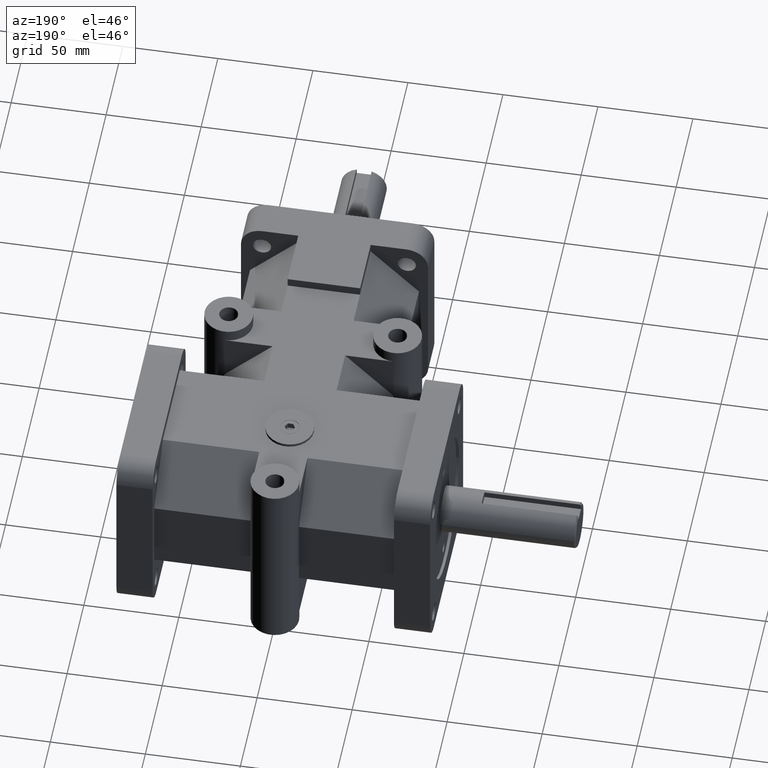
[diagram: clean part render]
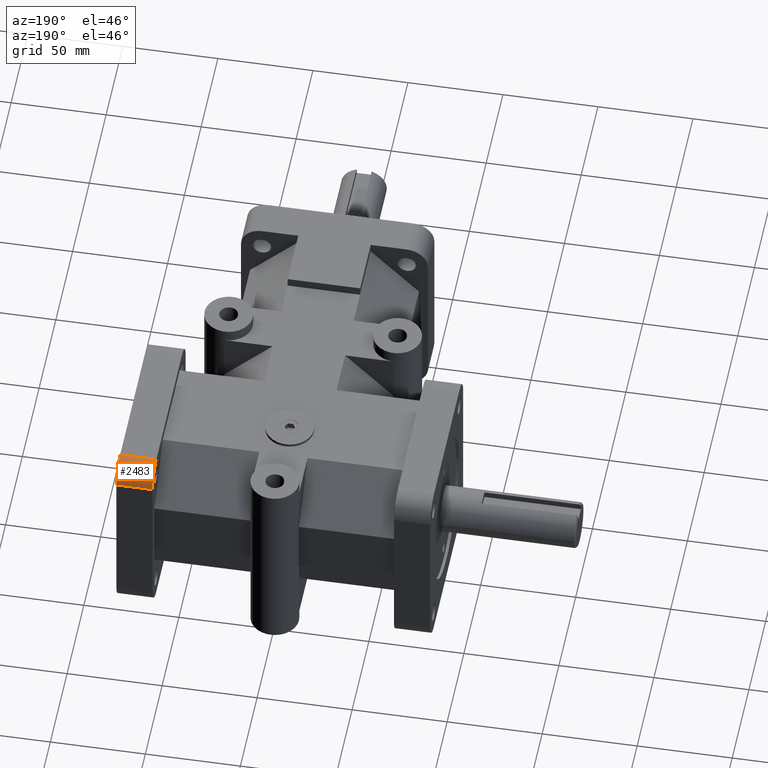
[diagram: same view with one face highlighted and labeled with its STEP entity id]
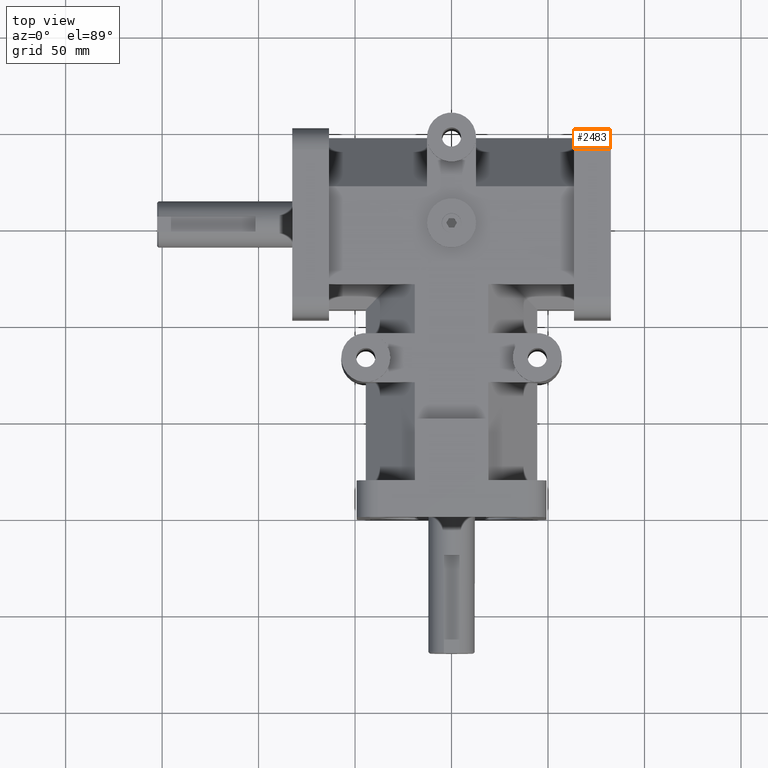
[diagram: same view with one face highlighted and labeled with its STEP entity id]
A machine part, auxiliary view. The second image highlights one B-rep face of the part: STEP entity #2483.
A second angle (top view) of the same face is appended — the face is thin or edge-on in the first view.
In plain terms, the highlighted cylindrical surface (edge-blend (fillet) strip) has radius 11.176 mm, axis along (1, 0, 0).
Its self-contained STEP definition (entity closure, byte-faithful):
#81=CYLINDRICAL_SURFACE('',#2676,11.176);
#146=CIRCLE('',#2677,11.176);
#147=CIRCLE('',#2678,11.176);
#253=FACE_OUTER_BOUND('',#406,.T.);
#406=EDGE_LOOP('',(#1806,#1807,#1808,#1809));
#620=LINE('',#3837,#870);
#621=LINE('',#3840,#871);
#870=VECTOR('',#3072,1.);
#871=VECTOR('',#3075,1.);
#1133=VERTEX_POINT('',#3833);
#1134=VERTEX_POINT('',#3834);
#1135=VERTEX_POINT('',#3836);
#1136=VERTEX_POINT('',#3838);
#1387=EDGE_CURVE('',#1133,#1134,#146,.T.);
#1388=EDGE_CURVE('',#1134,#1135,#620,.T.);
#1389=EDGE_CURVE('',#1135,#1136,#147,.T.);
#1390=EDGE_CURVE('',#1136,#1133,#621,.T.);
#1806=ORIENTED_EDGE('',*,*,#1387,.T.);
#1807=ORIENTED_EDGE('',*,*,#1388,.T.);
#1808=ORIENTED_EDGE('',*,*,#1389,.T.);
#1809=ORIENTED_EDGE('',*,*,#1390,.T.);
#2483=ADVANCED_FACE('',(#253),#81,.T.);
#2676=AXIS2_PLACEMENT_3D('',#3832,#3068,#3069);
#2677=AXIS2_PLACEMENT_3D('',#3835,#3070,#3071);
#2678=AXIS2_PLACEMENT_3D('',#3839,#3073,#3074);
#3068=DIRECTION('center_axis',(1.,0.,0.));
#3069=DIRECTION('ref_axis',(0.,0.707106781186549,0.707106781186546));
#3070=DIRECTION('center_axis',(-1.,0.,0.));
#3071=DIRECTION('ref_axis',(0.,0.707106781186549,0.707106781186546));
#3072=DIRECTION('',(-1.,0.,0.));
#3073=DIRECTION('center_axis',(1.,0.,0.));
#3074=DIRECTION('ref_axis',(0.,0.707106781186549,0.707106781186546));
#3075=DIRECTION('',(1.,0.,0.));
#3832=CARTESIAN_POINT('Origin',(77.7875,190.4365,38.0365));
#3833=CARTESIAN_POINT('',(82.55,190.4365,49.2125));
#3834=CARTESIAN_POINT('',(82.55,201.6125,38.0365));
#3835=CARTESIAN_POINT('Origin',(82.55,190.4365,38.0365));
#3836=CARTESIAN_POINT('',(63.5,201.6125,38.0365));
#3837=CARTESIAN_POINT('',(77.7875,201.6125,38.0365));
#3838=CARTESIAN_POINT('',(63.5,190.4365,49.2125));
#3839=CARTESIAN_POINT('Origin',(63.5,190.4365,38.0365));
#3840=CARTESIAN_POINT('',(77.7875,190.4365,49.2125));